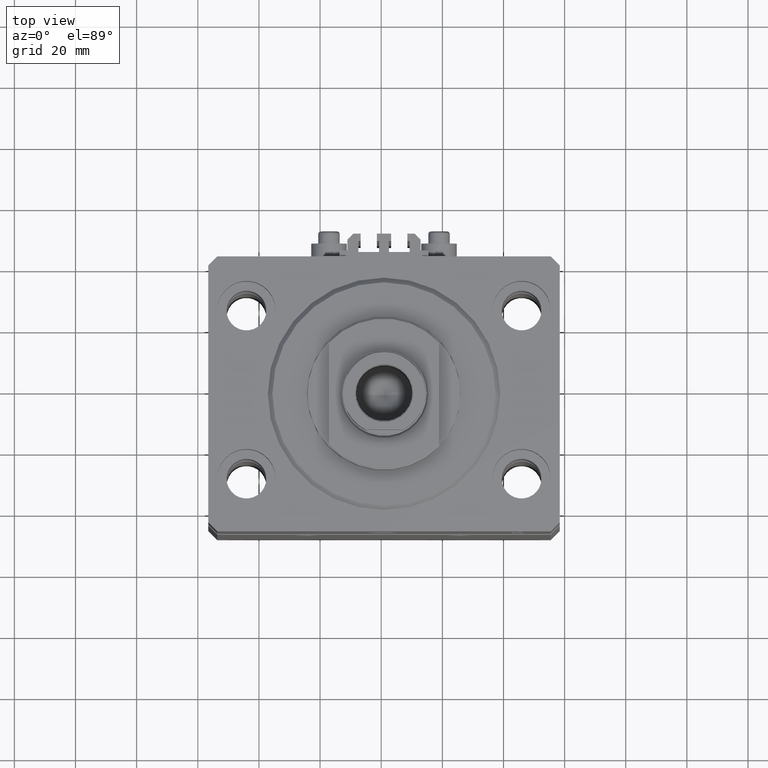
[diagram: clean part render]
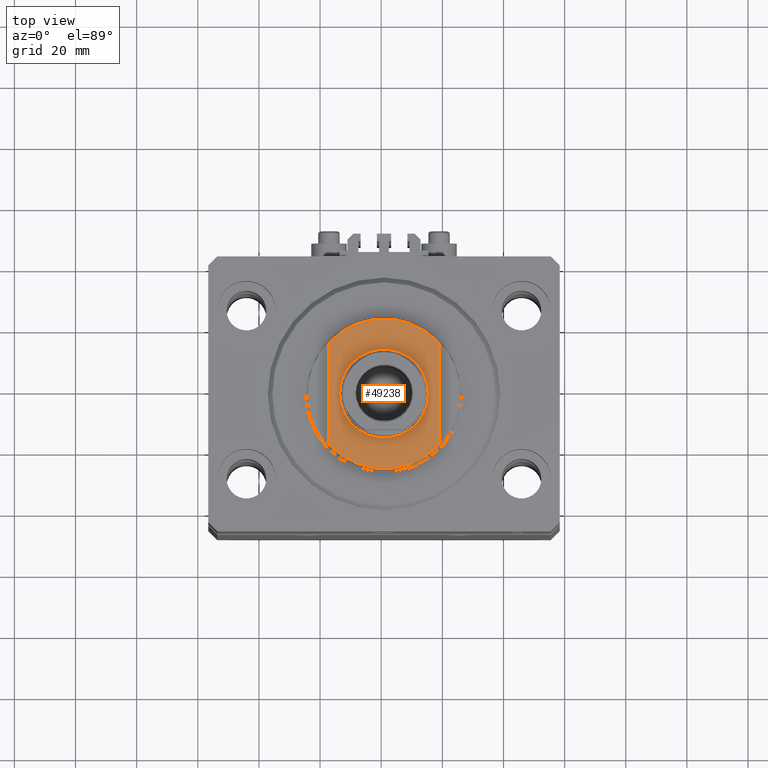
[diagram: same view with one face highlighted and labeled with its STEP entity id]
A machine part, top view. The second image highlights one B-rep face of the part: STEP entity #49238.
In plain terms, the highlighted planar face has unit normal (0, 0, 1).
Its self-contained STEP definition (entity closure, byte-faithful):
#322 = VERTEX_POINT ( 'NONE', #6501 ) ;
#2084 = DIRECTION ( 'NONE',  ( -1.000000000000000000, 0.000000000000000000, 0.000000000000000000 ) ) ;
#3770 = CARTESIAN_POINT ( 'NONE',  ( 0.000000000000000000, 0.000000000000000000, -7.000000000000000000 ) ) ;
#5410 = EDGE_LOOP ( 'NONE', ( #39407, #23103 ) ) ;
#5846 = ORIENTED_EDGE ( 'NONE', *, *, #43719, .T. ) ;
#6501 = CARTESIAN_POINT ( 'NONE',  ( -14.50000000000001243, 0.000000000000000000, -7.000000000000000000 ) ) ;
#7799 = FACE_BOUND ( 'NONE', #5410, .T. ) ;
#8967 = VERTEX_POINT ( 'NONE', #22371 ) ;
#9634 = DIRECTION ( 'NONE',  ( -1.000000000000000000, 0.000000000000000000, 0.000000000000000000 ) ) ;
#10378 = CARTESIAN_POINT ( 'NONE',  ( 0.000000000000000000, 0.000000000000000000, -7.000000000000000000 ) ) ;
#11917 = AXIS2_PLACEMENT_3D ( 'NONE', #10378, #14646, #2084 ) ;
#13651 = EDGE_CURVE ( 'NONE', #44250, #322, #21035, .T. ) ;
#14646 = DIRECTION ( 'NONE',  ( -0.000000000000000000, -0.000000000000000000, 1.000000000000000000 ) ) ;
#15347 = DIRECTION ( 'NONE',  ( 0.000000000000000000, 0.000000000000000000, -1.000000000000000000 ) ) ;
#18141 = CIRCLE ( 'NONE', #20565, 24.49999999999996803 ) ;
#18237 = CARTESIAN_POINT ( 'NONE',  ( 14.50000000000001243, 1.775737858763663987E-15, -7.000000000000000000 ) ) ;
#20203 = CARTESIAN_POINT ( 'NONE',  ( 0.000000000000000000, 0.000000000000000000, -7.000000000000000000 ) ) ;
#20565 = AXIS2_PLACEMENT_3D ( 'NONE', #44093, #36549, #9634 ) ;
#21035 = CIRCLE ( 'NONE', #36296, 14.50000000000001421 ) ;
#21230 = EDGE_CURVE ( 'NONE', #48832, #28751, #18141, .T. ) ;
#21876 = AXIS2_PLACEMENT_3D ( 'NONE', #3770, #15347, #31193 ) ;
#22371 = CARTESIAN_POINT ( 'NONE',  ( 18.00000000000000000, 16.62077013859462227, -7.000000000000000000 ) ) ;
#22824 = VECTOR ( 'NONE', #45473, 1000.000000000000000 ) ;
#23023 = AXIS2_PLACEMENT_3D ( 'NONE', #47733, #35903, #47219 ) ;
#23103 = ORIENTED_EDGE ( 'NONE', *, *, #13651, .T. ) ;
#23368 = EDGE_CURVE ( 'NONE', #43080, #8967, #39920, .T. ) ;
#23490 = CARTESIAN_POINT ( 'NONE',  ( -18.00000000000000000, -16.62077013859462227, -7.000000000000000000 ) ) ;
#24786 = CIRCLE ( 'NONE', #11917, 14.50000000000001421 ) ;
#25896 = VECTOR ( 'NONE', #37720, 1000.000000000000000 ) ;
#26397 = CARTESIAN_POINT ( 'NONE',  ( 18.00000000000000000, -41.24318125460256113, -7.000000000000000000 ) ) ;
#28042 = CARTESIAN_POINT ( 'NONE',  ( 18.00000000000000000, -16.62077013859462227, -7.000000000000000000 ) ) ;
#28264 = DIRECTION ( 'NONE',  ( -0.000000000000000000, -0.000000000000000000, 1.000000000000000000 ) ) ;
#28751 = VERTEX_POINT ( 'NONE', #23490 ) ;
#29142 = ORIENTED_EDGE ( 'NONE', *, *, #44710, .F. ) ;
#30639 = LINE ( 'NONE', #37933, #22824 ) ;
#31193 = DIRECTION ( 'NONE',  ( -1.000000000000000000, 0.000000000000000000, -0.000000000000000000 ) ) ;
#32416 = EDGE_CURVE ( 'NONE', #322, #44250, #24786, .T. ) ;
#35903 = DIRECTION ( 'NONE',  ( 0.000000000000000000, 0.000000000000000000, -1.000000000000000000 ) ) ;
#36296 = AXIS2_PLACEMENT_3D ( 'NONE', #20203, #28264, #46352 ) ;
#36549 = DIRECTION ( 'NONE',  ( 0.000000000000000000, 0.000000000000000000, -1.000000000000000000 ) ) ;
#37720 = DIRECTION ( 'NONE',  ( 0.000000000000000000, -1.000000000000000000, -0.000000000000000000 ) ) ;
#37933 = CARTESIAN_POINT ( 'NONE',  ( -18.00000000000000000, -41.24318125460256113, -7.000000000000000000 ) ) ;
#37968 = LINE ( 'NONE', #26397, #25896 ) ;
#39399 = EDGE_LOOP ( 'NONE', ( #44131, #5846, #41111, #29142 ) ) ;
#39407 = ORIENTED_EDGE ( 'NONE', *, *, #32416, .T. ) ;
#39664 = PLANE ( 'NONE',  #21876 ) ;
#39920 = CIRCLE ( 'NONE', #23023, 24.49999999999996803 ) ;
#41111 = ORIENTED_EDGE ( 'NONE', *, *, #21230, .T. ) ;
#42506 = FACE_OUTER_BOUND ( 'NONE', #39399, .T. ) ;
#43080 = VERTEX_POINT ( 'NONE', #47683 ) ;
#43719 = EDGE_CURVE ( 'NONE', #8967, #48832, #37968, .T. ) ;
#44093 = CARTESIAN_POINT ( 'NONE',  ( 0.000000000000000000, 0.000000000000000000, -7.000000000000000000 ) ) ;
#44131 = ORIENTED_EDGE ( 'NONE', *, *, #23368, .T. ) ;
#44250 = VERTEX_POINT ( 'NONE', #18237 ) ;
#44710 = EDGE_CURVE ( 'NONE', #43080, #28751, #30639, .T. ) ;
#45473 = DIRECTION ( 'NONE',  ( -0.000000000000000000, -1.000000000000000000, -0.000000000000000000 ) ) ;
#46352 = DIRECTION ( 'NONE',  ( -1.000000000000000000, 0.000000000000000000, 0.000000000000000000 ) ) ;
#47219 = DIRECTION ( 'NONE',  ( -1.000000000000000000, 0.000000000000000000, 0.000000000000000000 ) ) ;
#47683 = CARTESIAN_POINT ( 'NONE',  ( -18.00000000000000000, 16.62077013859462227, -7.000000000000000000 ) ) ;
#47733 = CARTESIAN_POINT ( 'NONE',  ( 0.000000000000000000, 0.000000000000000000, -7.000000000000000000 ) ) ;
#48832 = VERTEX_POINT ( 'NONE', #28042 ) ;
#49238 = ADVANCED_FACE ( 'NONE', ( #7799, #42506 ), #39664, .T. ) ;